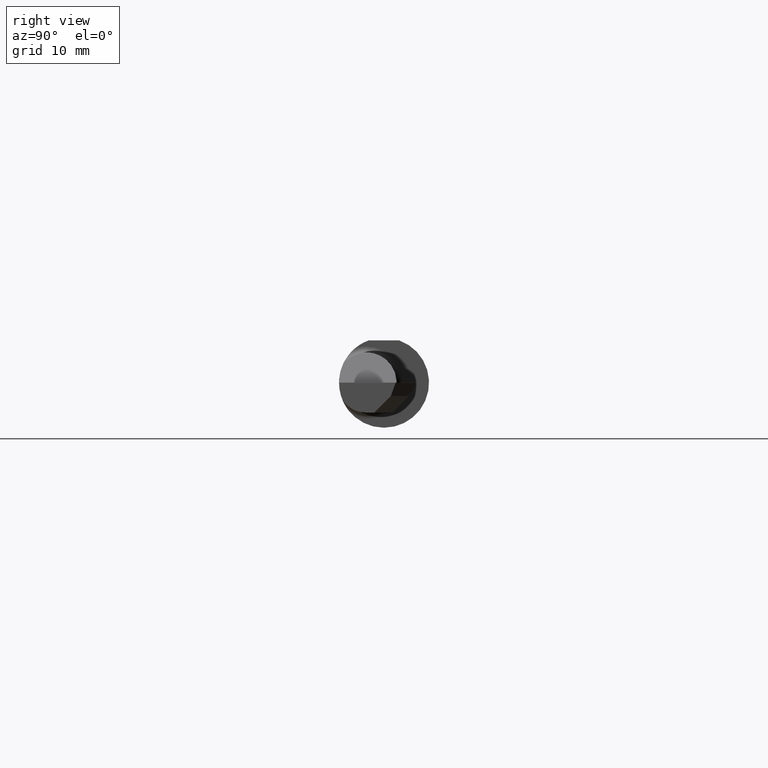
[diagram: clean part render]
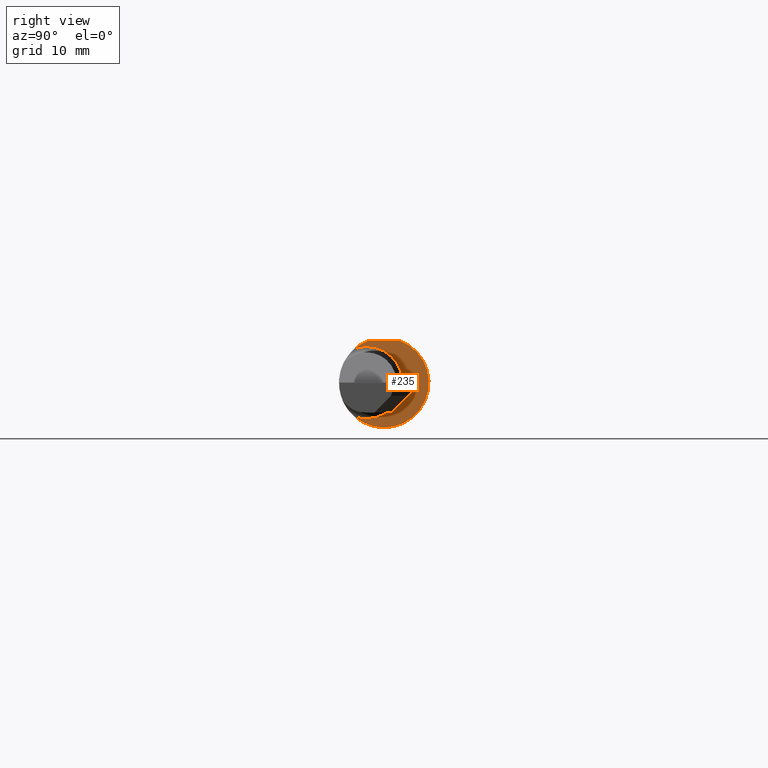
[diagram: same view with one face highlighted and labeled with its STEP entity id]
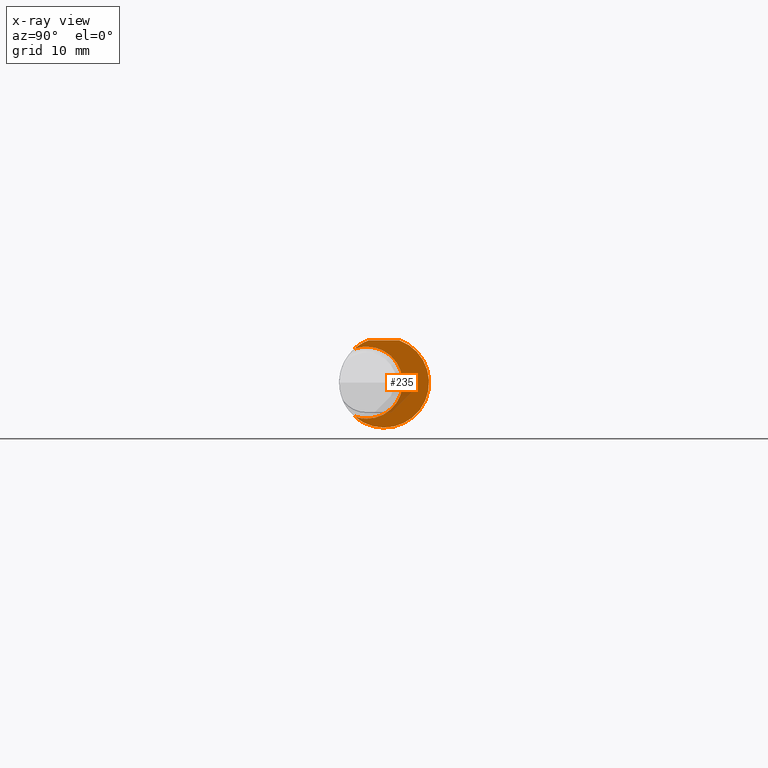
[diagram: x-ray of the same camera — body ghosted, the highlighted face saturated]
A machine part, right view. The second image highlights one B-rep face of the part: STEP entity #235.
The next image is the same camera in x-ray: the body ghosted, the highlighted face saturated — about 9% of this face is hidden behind the body in this view.
In plain terms, the highlighted planar face has unit normal (1, 0, 0).
Its self-contained STEP definition (entity closure, byte-faithful):
#33 = AXIS2_PLACEMENT_3D ( 'NONE', #124, #956, #728 ) ;
#40 = EDGE_CURVE ( 'NONE', #84, #536, #333, .T. ) ;
#45 = EDGE_CURVE ( 'NONE', #536, #266, #603, .T. ) ;
#67 = PLANE ( 'NONE',  #97 ) ;
#84 = VERTEX_POINT ( 'NONE', #942 ) ;
#94 = VERTEX_POINT ( 'NONE', #112 ) ;
#97 = AXIS2_PLACEMENT_3D ( 'NONE', #898, #216, #814 ) ;
#99 = ORIENTED_EDGE ( 'NONE', *, *, #177, .T. ) ;
#103 = ORIENTED_EDGE ( 'NONE', *, *, #45, .T. ) ;
#112 = CARTESIAN_POINT ( 'NONE',  ( 1.105000000000000204, -0.1232518659295093050, 0.1410992560040422727 ) ) ;
#113 = VECTOR ( 'NONE', #681, 39.37007874015748143 ) ;
#124 = CARTESIAN_POINT ( 'NONE',  ( 1.105000000000000204, -0.07234999999999998377, 0.000000000000000000 ) ) ;
#126 = EDGE_CURVE ( 'NONE', #231, #94, #462, .T. ) ;
#139 = DIRECTION ( 'NONE',  ( -1.000000000000000000, -0.000000000000000000, -0.000000000000000000 ) ) ;
#173 = LINE ( 'NONE', #453, #113 ) ;
#177 = EDGE_CURVE ( 'NONE', #94, #472, #553, .T. ) ;
#216 = DIRECTION ( 'NONE',  ( 1.000000000000000000, 0.000000000000000000, 0.000000000000000000 ) ) ;
#229 = CARTESIAN_POINT ( 'NONE',  ( 1.105000000000000204, -0.06325108694718215019, 0.1763499999999999790 ) ) ;
#231 = VERTEX_POINT ( 'NONE', #229 ) ;
#235 = ADVANCED_FACE ( 'NONE', ( #883 ), #67, .T. ) ;
#266 = VERTEX_POINT ( 'NONE', #894 ) ;
#313 = ORIENTED_EDGE ( 'NONE', *, *, #377, .T. ) ;
#333 = CIRCLE ( 'NONE', #33, 0.1499999999999999944 ) ;
#345 = CARTESIAN_POINT ( 'NONE',  ( 1.105000000000000204, 0.000000000000000000, 0.000000000000000000 ) ) ;
#368 = ORIENTED_EDGE ( 'NONE', *, *, #40, .T. ) ;
#377 = EDGE_CURVE ( 'NONE', #472, #84, #583, .T. ) ;
#386 = ORIENTED_EDGE ( 'NONE', *, *, #126, .T. ) ;
#397 = AXIS2_PLACEMENT_3D ( 'NONE', #737, #139, #742 ) ;
#409 = CARTESIAN_POINT ( 'NONE',  ( 1.105000000000000204, -0.1232518659295093050, -0.1410992560040422727 ) ) ;
#453 = CARTESIAN_POINT ( 'NONE',  ( 1.105000000000000204, 0.1749999999999999889, 0.1763499999999999790 ) ) ;
#462 = CIRCLE ( 'NONE', #569, 0.1873499999999999888 ) ;
#472 = VERTEX_POINT ( 'NONE', #571 ) ;
#475 = EDGE_LOOP ( 'NONE', ( #386, #99, #313, #368, #103, #896 ) ) ;
#500 = CARTESIAN_POINT ( 'NONE',  ( 1.105000000000000204, 0.000000000000000000, 0.000000000000000000 ) ) ;
#534 = CARTESIAN_POINT ( 'NONE',  ( 1.105000000000000204, -0.07234999999999998377, 0.000000000000000000 ) ) ;
#536 = VERTEX_POINT ( 'NONE', #409 ) ;
#553 = CIRCLE ( 'NONE', #397, 0.1499999999999999944 ) ;
#567 = DIRECTION ( 'NONE',  ( 1.000000000000000000, 0.000000000000000000, 0.000000000000000000 ) ) ;
#569 = AXIS2_PLACEMENT_3D ( 'NONE', #500, #567, #870 ) ;
#571 = CARTESIAN_POINT ( 'NONE',  ( 1.105000000000000204, -0.07234999999999996989, 0.1499999999999999944 ) ) ;
#576 = DIRECTION ( 'NONE',  ( 1.000000000000000000, 0.000000000000000000, 0.000000000000000000 ) ) ;
#583 = CIRCLE ( 'NONE', #716, 0.1499999999999999944 ) ;
#603 = CIRCLE ( 'NONE', #811, 0.1873499999999999888 ) ;
#681 = DIRECTION ( 'NONE',  ( 0.000000000000000000, -1.000000000000000000, 0.000000000000000000 ) ) ;
#716 = AXIS2_PLACEMENT_3D ( 'NONE', #534, #844, #776 ) ;
#728 = DIRECTION ( 'NONE',  ( 0.000000000000000000, 0.000000000000000000, -1.000000000000000000 ) ) ;
#737 = CARTESIAN_POINT ( 'NONE',  ( 1.105000000000000204, -0.07234999999999998377, 0.000000000000000000 ) ) ;
#742 = DIRECTION ( 'NONE',  ( 0.000000000000000000, 0.000000000000000000, -1.000000000000000000 ) ) ;
#776 = DIRECTION ( 'NONE',  ( 0.000000000000000000, 0.000000000000000000, -1.000000000000000000 ) ) ;
#793 = DIRECTION ( 'NONE',  ( 0.000000000000000000, 0.000000000000000000, -1.000000000000000000 ) ) ;
#811 = AXIS2_PLACEMENT_3D ( 'NONE', #345, #576, #793 ) ;
#814 = DIRECTION ( 'NONE',  ( 0.000000000000000000, 0.000000000000000000, -1.000000000000000000 ) ) ;
#821 = EDGE_CURVE ( 'NONE', #266, #231, #173, .T. ) ;
#844 = DIRECTION ( 'NONE',  ( -1.000000000000000000, -0.000000000000000000, -0.000000000000000000 ) ) ;
#870 = DIRECTION ( 'NONE',  ( 0.000000000000000000, 0.000000000000000000, -1.000000000000000000 ) ) ;
#883 = FACE_OUTER_BOUND ( 'NONE', #475, .T. ) ;
#894 = CARTESIAN_POINT ( 'NONE',  ( 1.105000000000000204, 0.06325108694718233060, 0.1763499999999999790 ) ) ;
#896 = ORIENTED_EDGE ( 'NONE', *, *, #821, .T. ) ;
#898 = CARTESIAN_POINT ( 'NONE',  ( 1.105000000000000204, 0.2526500000000000412, 0.000000000000000000 ) ) ;
#942 = CARTESIAN_POINT ( 'NONE',  ( 1.105000000000000204, -0.07234999999999998377, -0.1499999999999999944 ) ) ;
#956 = DIRECTION ( 'NONE',  ( -1.000000000000000000, -0.000000000000000000, -0.000000000000000000 ) ) ;